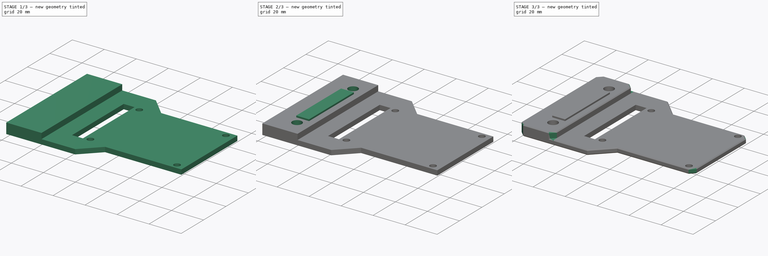
[diagram: build sequence overview — one tinted view per stage of 3, left to right]
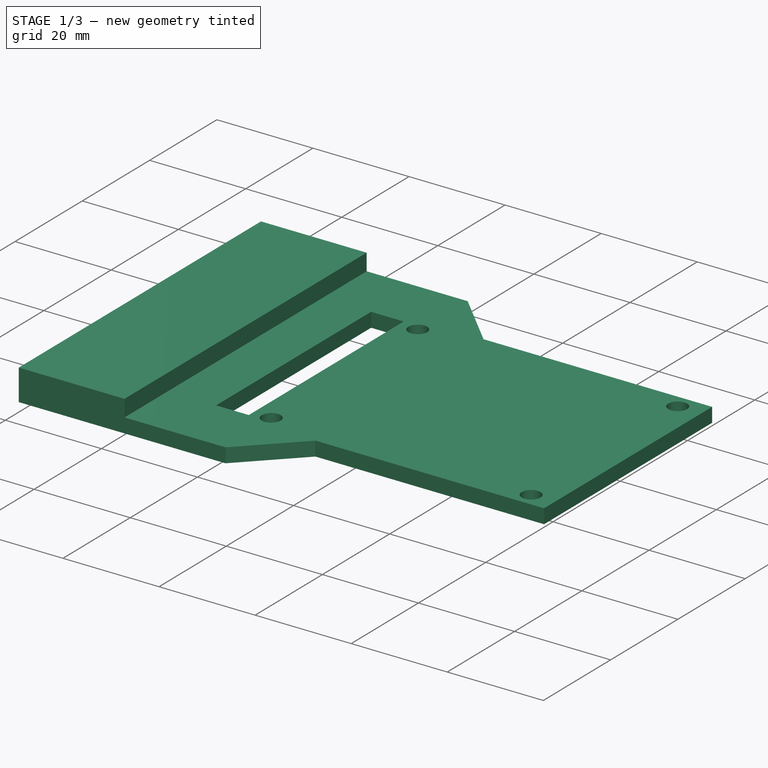
[diagram: stage 1 of 3 — iso view after this stage's code; geometry added in this stage tinted green]
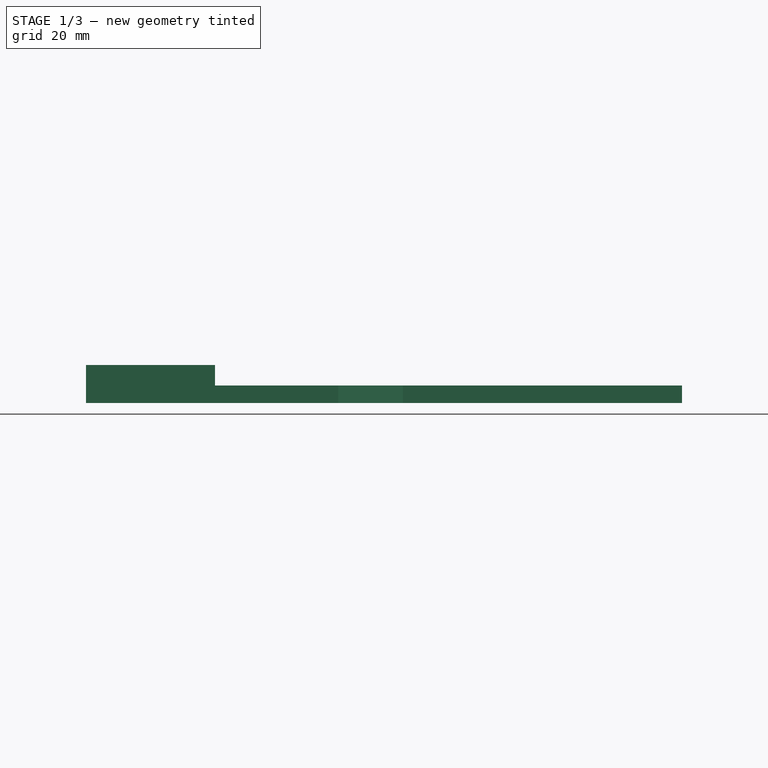
[diagram: stage 1 of 3 — front view after this stage's code; geometry added in this stage tinted green]
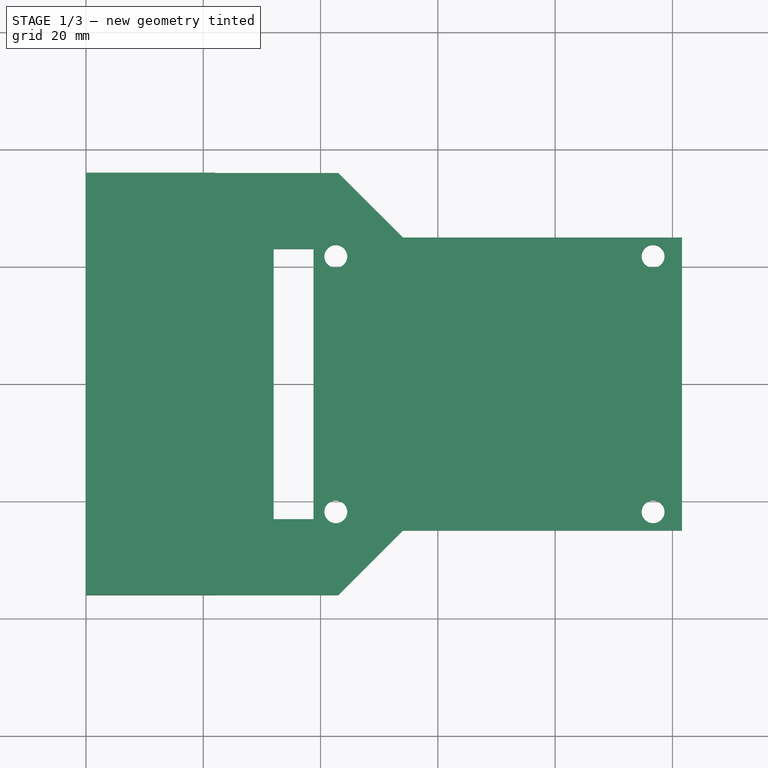
[diagram: stage 1 of 3 — top view after this stage's code; geometry added in this stage tinted green]
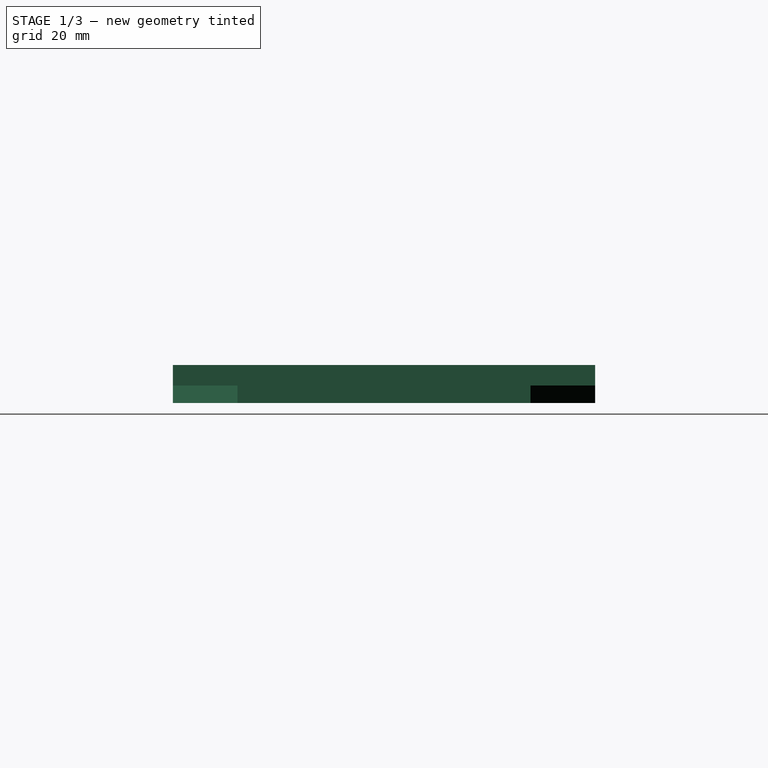
[diagram: stage 1 of 3 — right view after this stage's code; geometry added in this stage tinted green]
FCSTD DOCUMENT  (FreeCAD 0.19R24366 (Git))
Label: mounter2
License: All rights reserved
LicenseURL: http://en.wikipedia.org/wiki/All_rights_reserved
objects: Sketcher::SketchObject×5, PartDesign::Pad×3, PartDesign::Pocket×2, PartDesign::Chamfer×2, PartDesign::Body×1
note: 20 computed .brp shape members not serialized (recipe doc carries the construction recipe); baked Part::Feature solids carry a one-line shape summary decoded from their .brp

FEATURE [Sketcher::SketchObject] Sketch
  FullyConstrained = false
  MapMode = 5
  Support = -> [XY_Plane]
  sketch-geometry (16):
    g0: LineSegment StartX=54.0454 StartY=24.98 StartZ=0 EndX=101.634 EndY=24.98 EndZ=0
    g1: LineSegment StartX=101.634 StartY=24.98 StartZ=0 EndX=101.634 EndY=-24.98 EndZ=0
    g2: LineSegment StartX=101.634 StartY=-24.98 StartZ=0 EndX=54.0454 EndY=-24.98 EndZ=0
    g3: LineSegment StartX=0 StartY=-36 StartZ=0 EndX=0 EndY=36 EndZ=0
    g4: Circle CenterX=42.6 CenterY=21.78 CenterZ=0 NormalX=0 NormalY=0 NormalZ=1 AngleXU=0 Radius=1.95
    g5: Circle CenterX=42.6 CenterY=-21.78 CenterZ=0 NormalX=0 NormalY=0 NormalZ=1 AngleXU=0 Radius=1.95
    g6: Circle CenterX=96.7 CenterY=21.78 CenterZ=0 NormalX=0 NormalY=0 NormalZ=1 AngleXU=0 Radius=1.95
    g7: Circle CenterX=96.7 CenterY=-21.78 CenterZ=0 NormalX=0 NormalY=0 NormalZ=1 AngleXU=0 Radius=1.95
    g8: LineSegment StartX=32 StartY=23.0406 StartZ=0 EndX=38.8 EndY=23.0406 EndZ=0
    g9: LineSegment StartX=38.8 StartY=23.0406 StartZ=0 EndX=38.8 EndY=-23.0406 EndZ=0
    g10: LineSegment StartX=38.8 StartY=-23.0406 StartZ=0 EndX=32 EndY=-23.0406 EndZ=0
    g11: LineSegment StartX=32 StartY=-23.0406 StartZ=0 EndX=32 EndY=23.0406 EndZ=0
    g12: LineSegment StartX=54.0454 StartY=24.98 StartZ=0 EndX=43.0254 EndY=36 EndZ=0
    g13: LineSegment StartX=43.0254 StartY=36 StartZ=0 EndX=0 EndY=36 EndZ=0
    g14: LineSegment StartX=54.0454 StartY=-24.98 StartZ=0 EndX=43.0254 EndY=-36 EndZ=0
    g15: LineSegment StartX=43.0254 StartY=-36 StartZ=0 EndX=0 EndY=-36 EndZ=0
  constraints (41):
    c: Coincident(g0,g1)
    c: Coincident(g1,g2)
    c: Horizontal(g0)
    c: Horizontal(g2)
    c: Vertical(g1)
    c: Vertical(g3)
    c: Diameter(g4) = 3.9
    c: Diameter(g6) = 3.9
    c: Diameter(g7) = 3.9
    c: Diameter(g5) = 3.9
    c: DistanceY(g5,g4) = 43.56
    c: DistanceY(g6,g4) = 0
    c: DistanceY(g5,g7) = 0
    c: DistanceX(g4,g6) = 54.1
    c: DistanceX(g7,g6) = 0
    c: DistanceY(g4,g0) = 3.2
    c: Coincident(g8,g9)
    c: Coincident(g9,g10)
    c: Coincident(g10,g11)
    c: Coincident(g11,g8)
    c: Horizontal(g8)
    c: Horizontal(g10)
    c: Vertical(g9)
    c: Coincident(g0,g12)
    c: Coincident(g12,g13)
    c: Horizontal(g13)
    c: Coincident(g2,g14)
    c: Coincident(g14,g15)
    c: Horizontal(g15)
    c: Coincident(g13,g3)
    c: Coincident(g3,g15)
    c: Symmetric(g4,g5,g-1)
    c: PointOnObject(g-1,g3)
    c: Symmetric(g14,g12,g-1)
    c: Symmetric(g0,g2,g-1)
    c: Symmetric(g8,g10,g-1)
    c: DistanceX(g3,g8) = 32
    c: DistanceY(g3,g3) = 72
    c: Angle(g14,g15) = 2.35619
    c: DistanceX(g3,g4) = 42.6
    c: DistanceX(g8,g8) = 6.8
FEATURE [PartDesign::Pad] Pad
  Direction = (1,1,1)
  Length = 3
  Length2 = 100
  Profile = -> Sketch
  Type = 0
FEATURE [Sketcher::SketchObject] Sketch001
  FullyConstrained = true
  MapMode = 5
  Support = -> [XY_Plane]
  sketch-geometry (4):
    g0: LineSegment StartX=0 StartY=36 StartZ=0 EndX=22 EndY=36 EndZ=0
    g1: LineSegment StartX=22 StartY=36 StartZ=0 EndX=22 EndY=-36 EndZ=0
    g2: LineSegment StartX=22 StartY=-36 StartZ=0 EndX=0 EndY=-36 EndZ=0
    g3: LineSegment StartX=0 StartY=-36 StartZ=0 EndX=0 EndY=36 EndZ=0
  constraints (11):
    c: Coincident(g0,g1)
    c: Coincident(g1,g2)
    c: Coincident(g2,g3)
    c: Coincident(g3,g0)
    c: Horizontal(g0)
    c: Horizontal(g2)
    c: Vertical(g1)
    c: DistanceY(g2,g0) = 72
    c: Symmetric(g0,g2,g-1)
    c: PointOnObject(g-1,g3)
    c: DistanceX(g0,g0) = 22
FEATURE [PartDesign::Pad] Pad001
  BaseFeature = -> Pad
  Direction = (1,1,1)
  Length = 6.5
  Length2 = 100
  Profile = -> Sketch001
  Type = 0
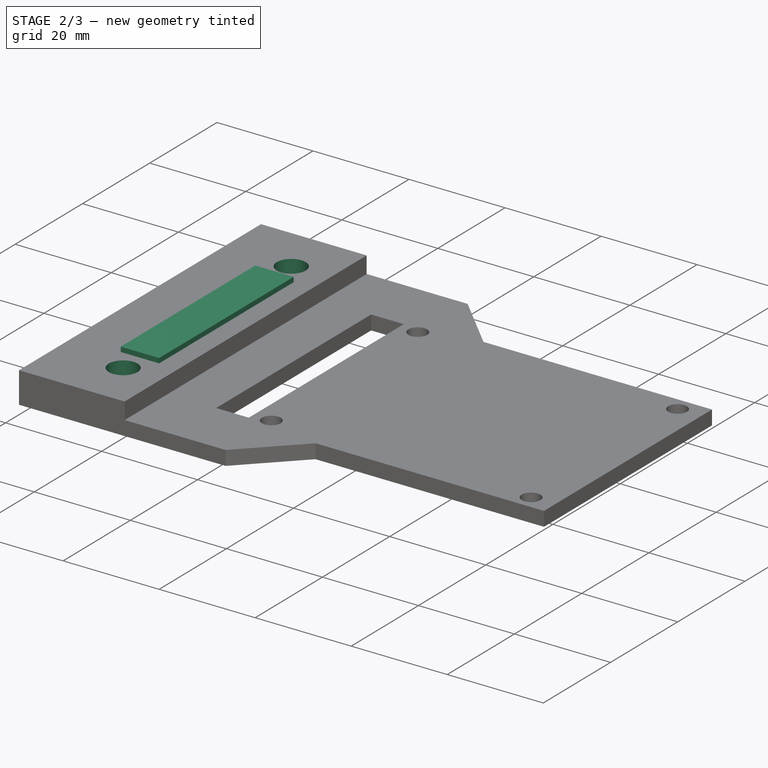
[diagram: stage 2 of 3 — iso view after this stage's code; geometry added in this stage tinted green]
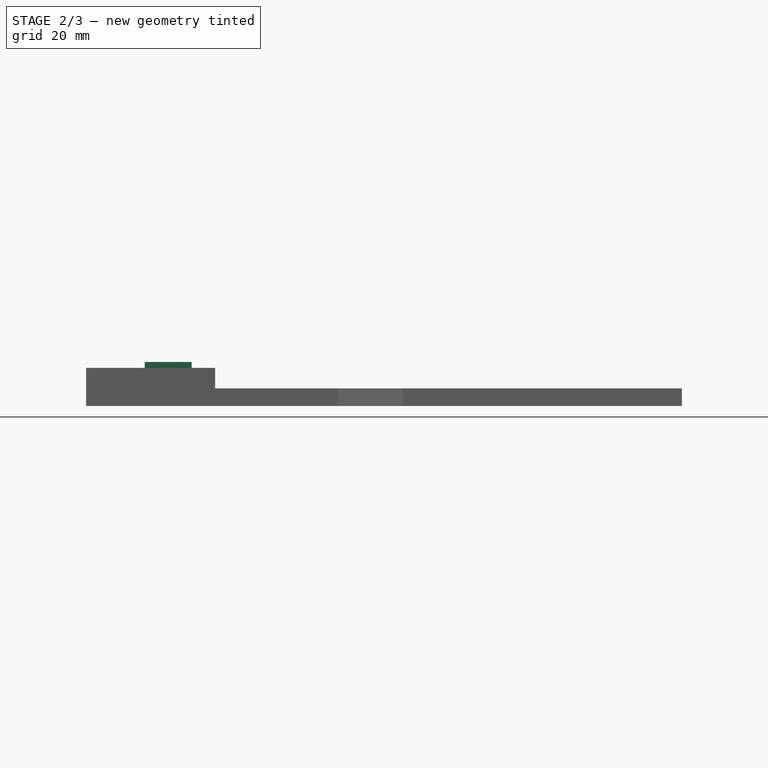
[diagram: stage 2 of 3 — front view after this stage's code; geometry added in this stage tinted green]
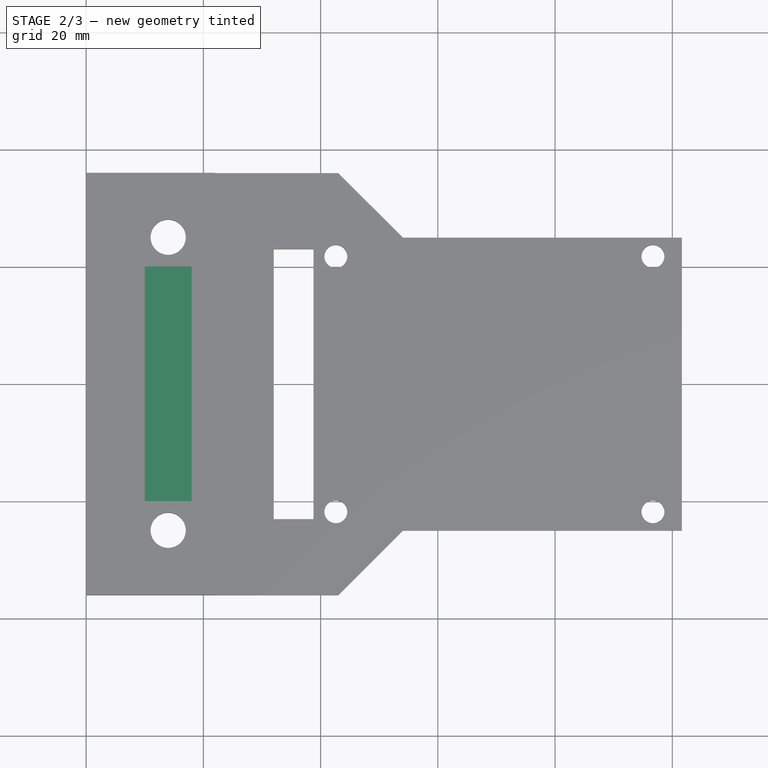
[diagram: stage 2 of 3 — top view after this stage's code; geometry added in this stage tinted green]
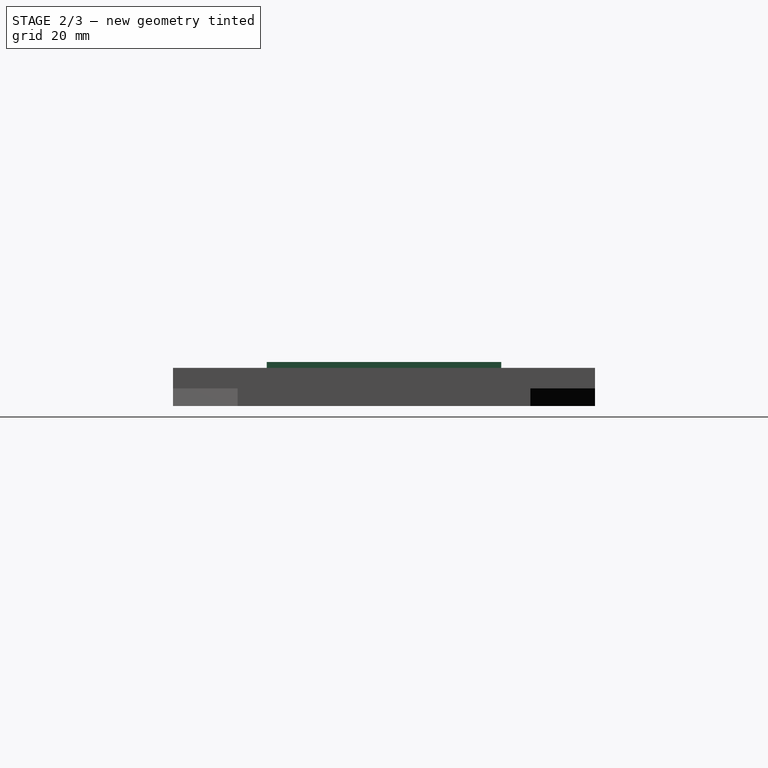
[diagram: stage 2 of 3 — right view after this stage's code; geometry added in this stage tinted green]
FEATURE [Sketcher::SketchObject] Sketch002
  FullyConstrained = true
  MapMode = 5
  Support = -> [XY_Plane]
  sketch-geometry (4):
    g0: LineSegment StartX=10 StartY=20 StartZ=0 EndX=18 EndY=20 EndZ=0
    g1: LineSegment StartX=18 StartY=20 StartZ=0 EndX=18 EndY=-20 EndZ=0
    g2: LineSegment StartX=18 StartY=-20 StartZ=0 EndX=10 EndY=-20 EndZ=0
    g3: LineSegment StartX=10 StartY=-20 StartZ=0 EndX=10 EndY=20 EndZ=0
  constraints (11):
    c: Coincident(g0,g1)
    c: Coincident(g1,g2)
    c: Coincident(g2,g3)
    c: Coincident(g3,g0)
    c: Horizontal(g0)
    c: Horizontal(g2)
    c: Vertical(g1)
    c: DistanceY(g1,g0) = 40
    c: DistanceX(g-1,g0) = 10
    c: DistanceX(g0,g0) = 8
    c: Symmetric(g0,g2,g-1)
FEATURE [PartDesign::Pad] Pad002
  BaseFeature = -> Pad001
  Direction = (1,1,1)
  Length = 7.5
  Length2 = 100
  Profile = -> Sketch002
  Type = 0
FEATURE [Sketcher::SketchObject] Sketch003
  FullyConstrained = true
  MapMode = 5
  Support = -> [XY_Plane]
  sketch-geometry (2):
    g0: Circle CenterX=14 CenterY=25 CenterZ=0 NormalX=0 NormalY=0 NormalZ=1 AngleXU=0 Radius=6.1
    g1: Circle CenterX=14 CenterY=-25 CenterZ=0 NormalX=0 NormalY=0 NormalZ=1 AngleXU=0 Radius=6.1
  constraints (5):
    c: Symmetric(g0,g1,g-1)
    c: DistanceY(g1,g0) = 50
    c: Diameter(g0) = 12.2
    c: Diameter(g1) = 12.2
    c: DistanceX(g-1,g0) = 14
FEATURE [PartDesign::Pocket] Pocket
  BaseFeature = -> Pad002
  Length = 3.5
  Length2 = 100
  Profile = -> Sketch003
  Reversed = true
  Type = 0
FEATURE [Sketcher::SketchObject] Sketch004
  FullyConstrained = true
  MapMode = 5
  Support = -> [XY_Plane]
  sketch-geometry (2):
    g0: Circle CenterX=14 CenterY=25 CenterZ=0 NormalX=0 NormalY=0 NormalZ=1 AngleXU=0 Radius=3
    g1: Circle CenterX=14 CenterY=-25 CenterZ=0 NormalX=0 NormalY=0 NormalZ=1 AngleXU=0 Radius=3
  constraints (5):
    c: Symmetric(g0,g1,g-1)
    c: DistanceX(g-1,g0) = 14
    c: DistanceY(g1,g0) = 50
    c: Diameter(g0) = 6
    c: Diameter(g1) = 6
FEATURE [PartDesign::Pocket] Pocket001
  BaseFeature = -> Pocket
  Length = 0
  Length2 = 100
  Profile = -> Sketch004
  Type = 3
  UpToFace = -> Pocket [Face28]
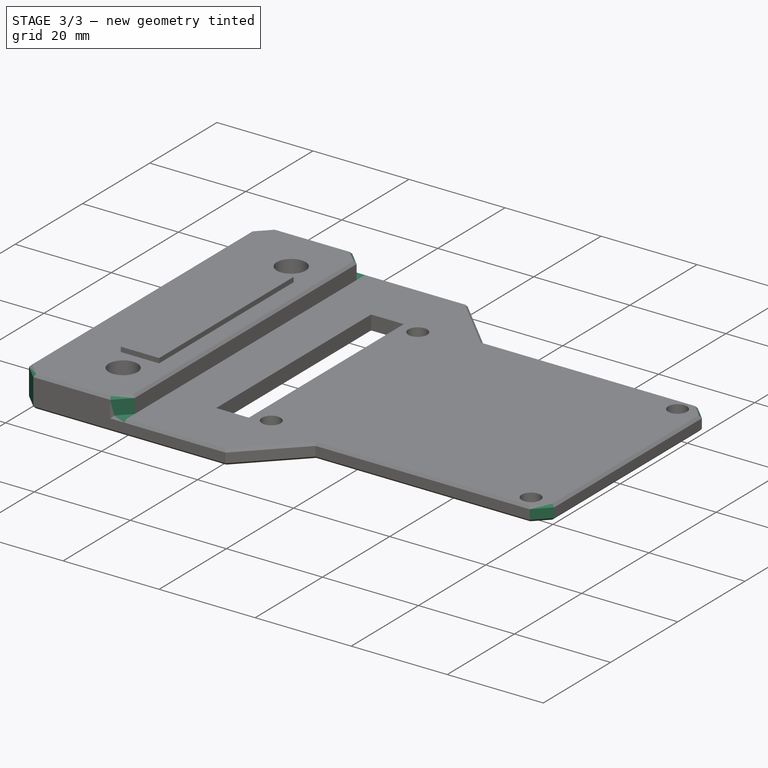
[diagram: stage 3 of 3 — iso view after this stage's code; geometry added in this stage tinted green]
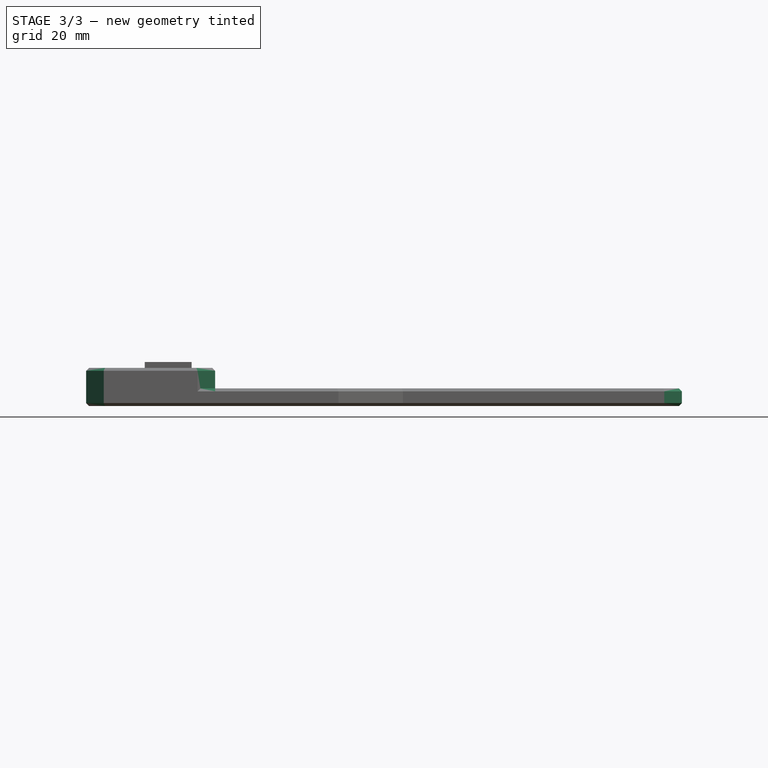
[diagram: stage 3 of 3 — front view after this stage's code; geometry added in this stage tinted green]
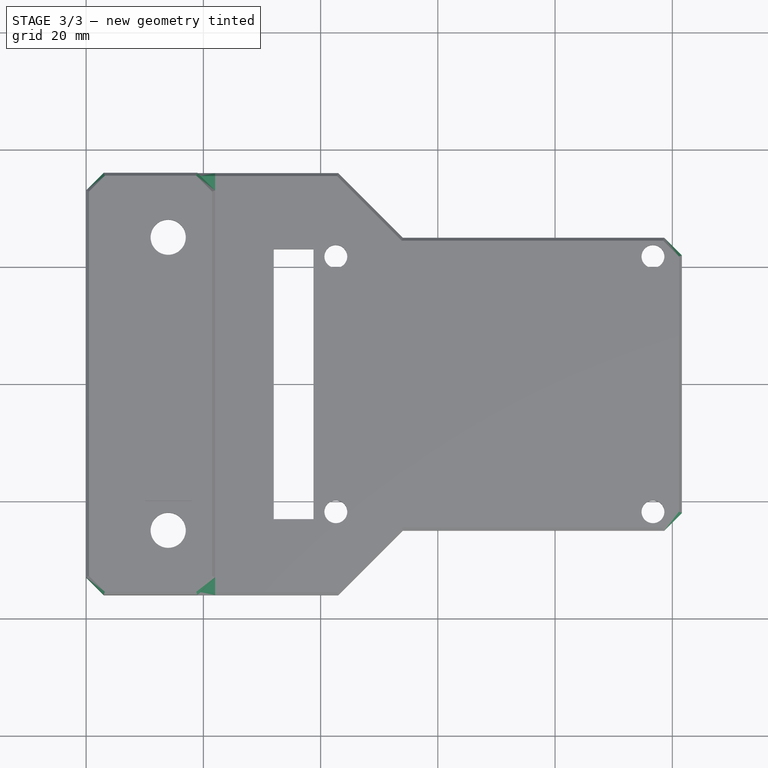
[diagram: stage 3 of 3 — top view after this stage's code; geometry added in this stage tinted green]
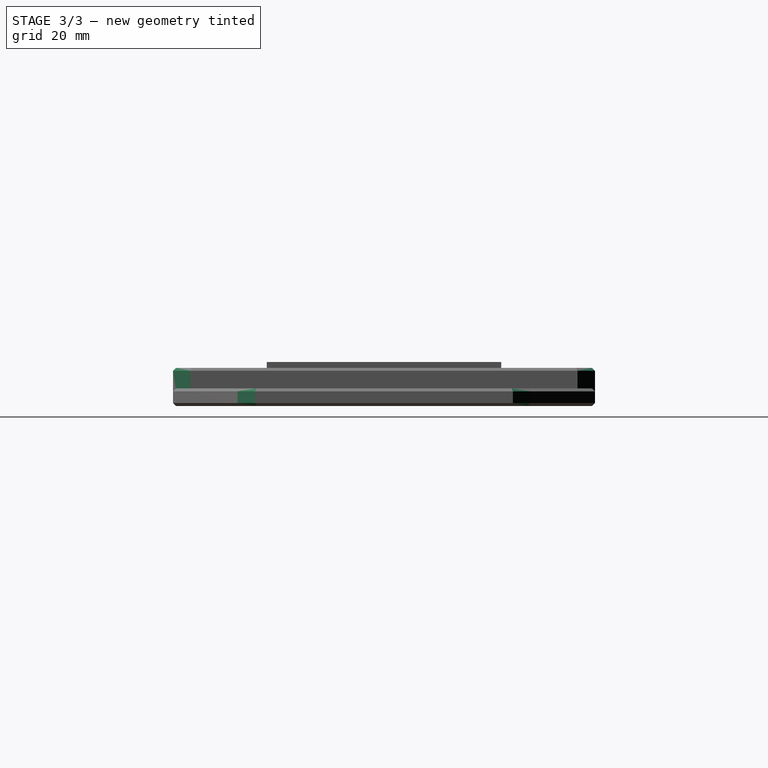
[diagram: stage 3 of 3 — right view after this stage's code; geometry added in this stage tinted green]
FEATURE [PartDesign::Chamfer] Chamfer
  Angle = 45
  Base = -> Pocket001 [Edge37,Edge5,Edge66,Edge39,Edge70,Edge78,Edge67,Edge64]
  BaseFeature = -> Pocket001
  ChamferType = 0
  FlipDirection = false
  Size = 3
  Size2 = 1
  SupportTransform = false
FEATURE [PartDesign::Chamfer] Chamfer001
  Angle = 45
  Base = -> Chamfer [Edge24,Edge3,Edge22,Edge30,Edge31,Edge32,Edge5,Edge33,Edge6,Edge7,Edge34,Edge54,Edge52,Edge102,Edge29,Edge83,Edge51,Edge50,Edge13,Edge1,Edge75,Edge73,Edge77,Edge35,Edge101,Edge53,Edge28,Edge9,Edge10,Edge11,Edge12,Edge79,Edge85,Edge100]
  BaseFeature = -> Chamfer
  ChamferType = 0
  FlipDirection = false
  Size = 0.5
  Size2 = 1
  SupportTransform = false
FEATURE [PartDesign::Body] Body
  Group = -> [Sketch,Pad,Sketch001,Pad001,Sketch002,Pad002,Sketch003,Pocket,Sketch004,Pocket001,Chamfer,Chamfer001]
  Origin = -> Origin
  Tip = -> Chamfer001
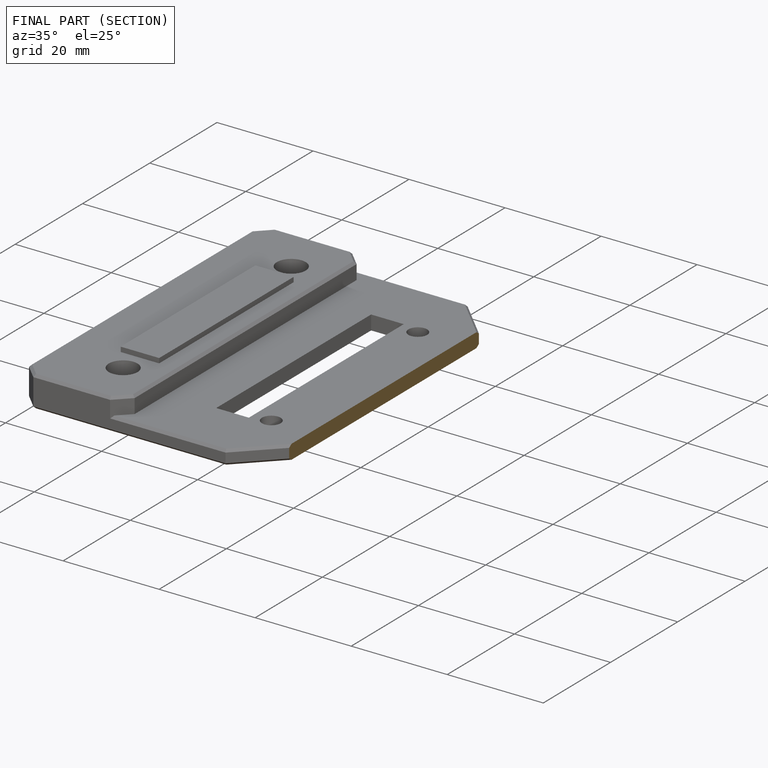
[diagram: finished part — half-section view (interior)]
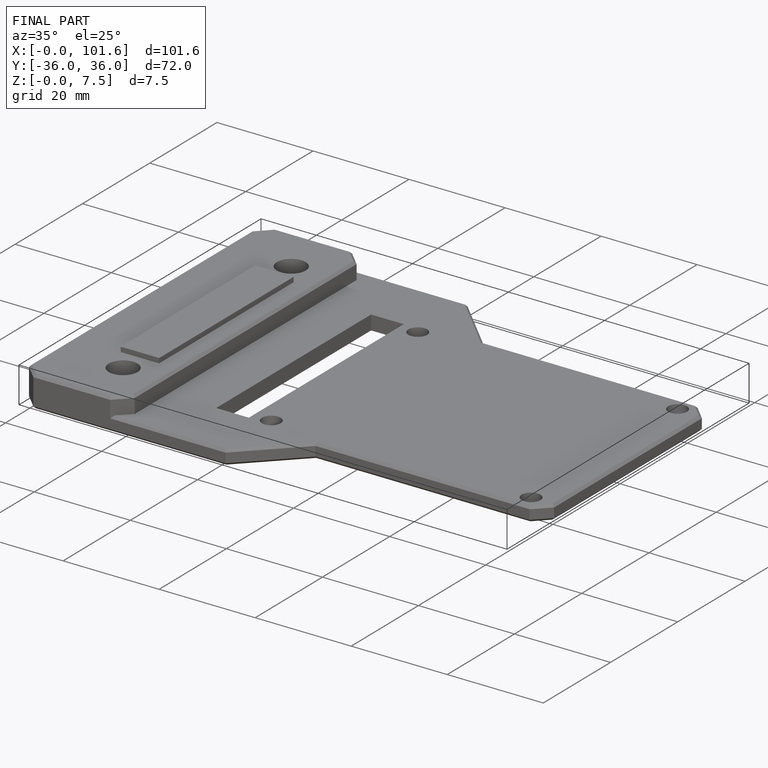
[diagram: finished part — iso view with bounding-box wireframe]
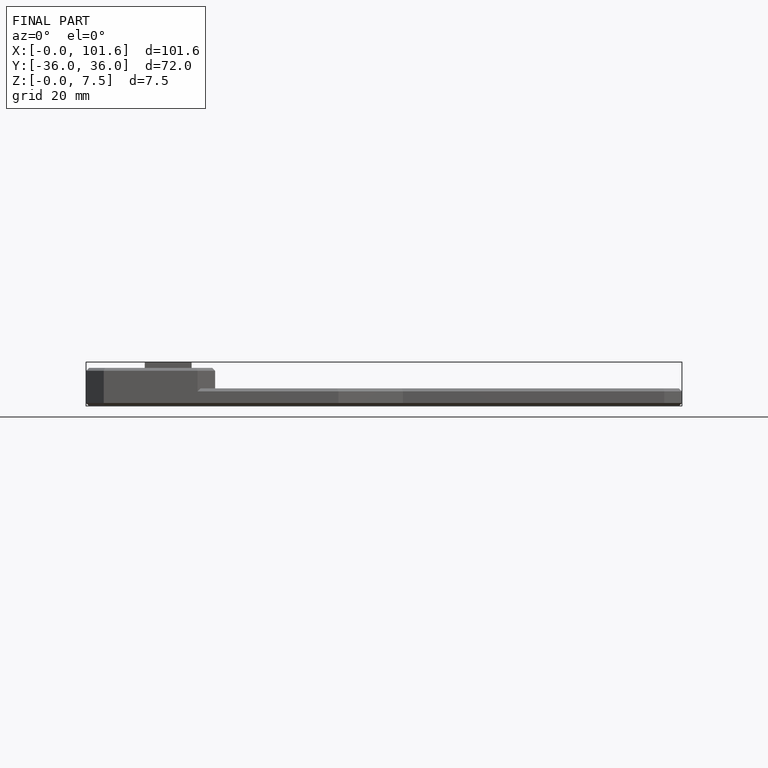
[diagram: finished part — front view with bounding-box wireframe]
